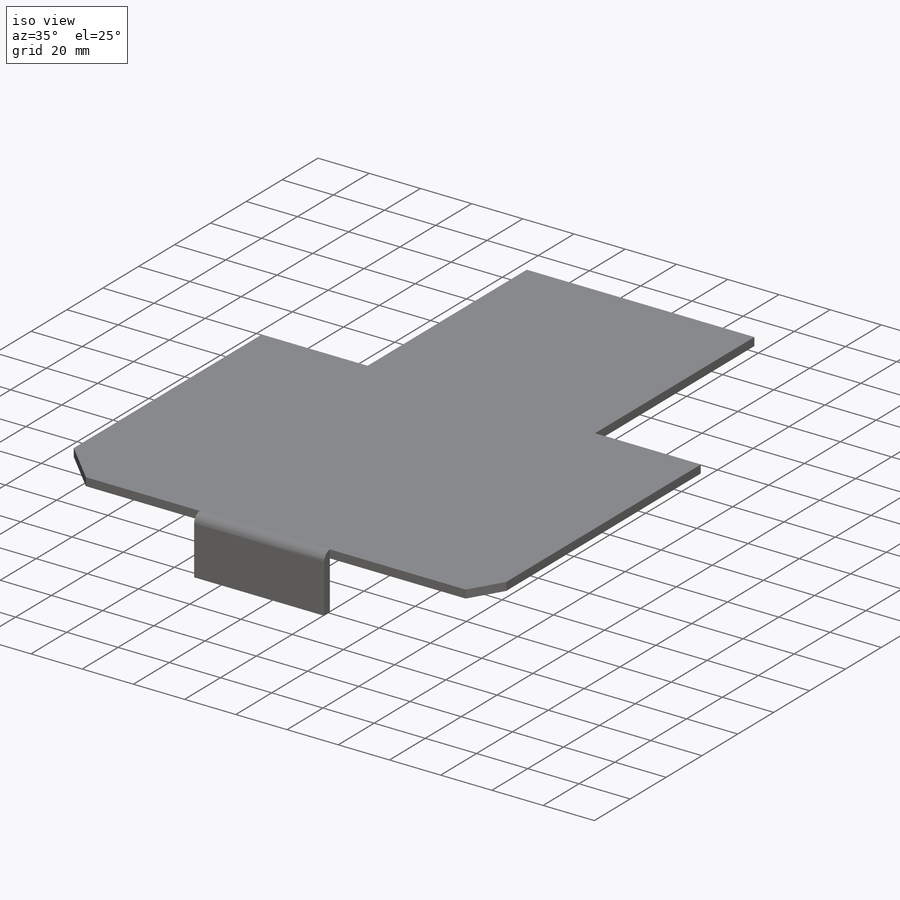
[diagram: iso view]
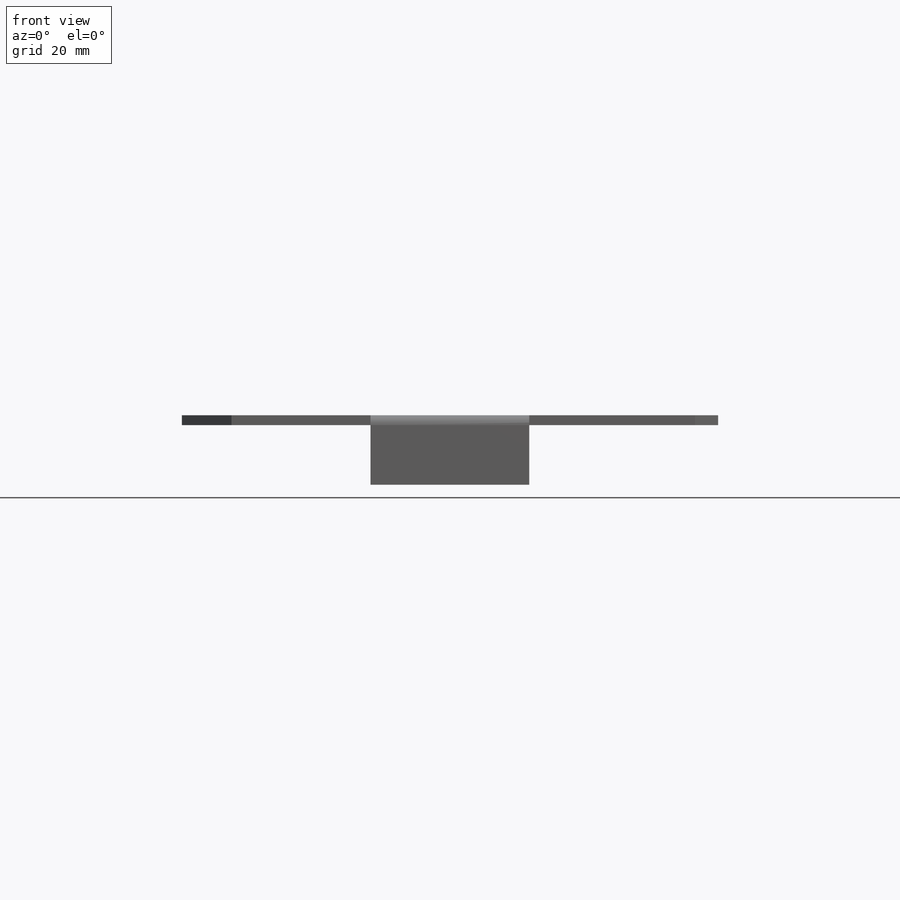
[diagram: front view]
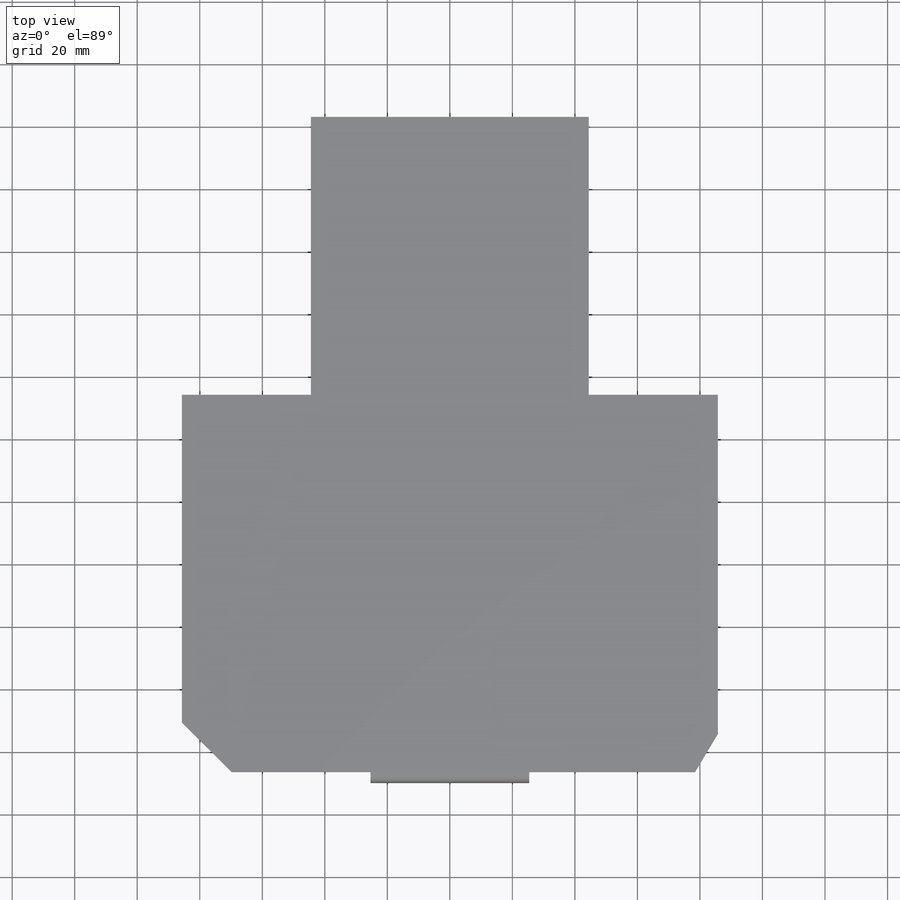
[diagram: top view]
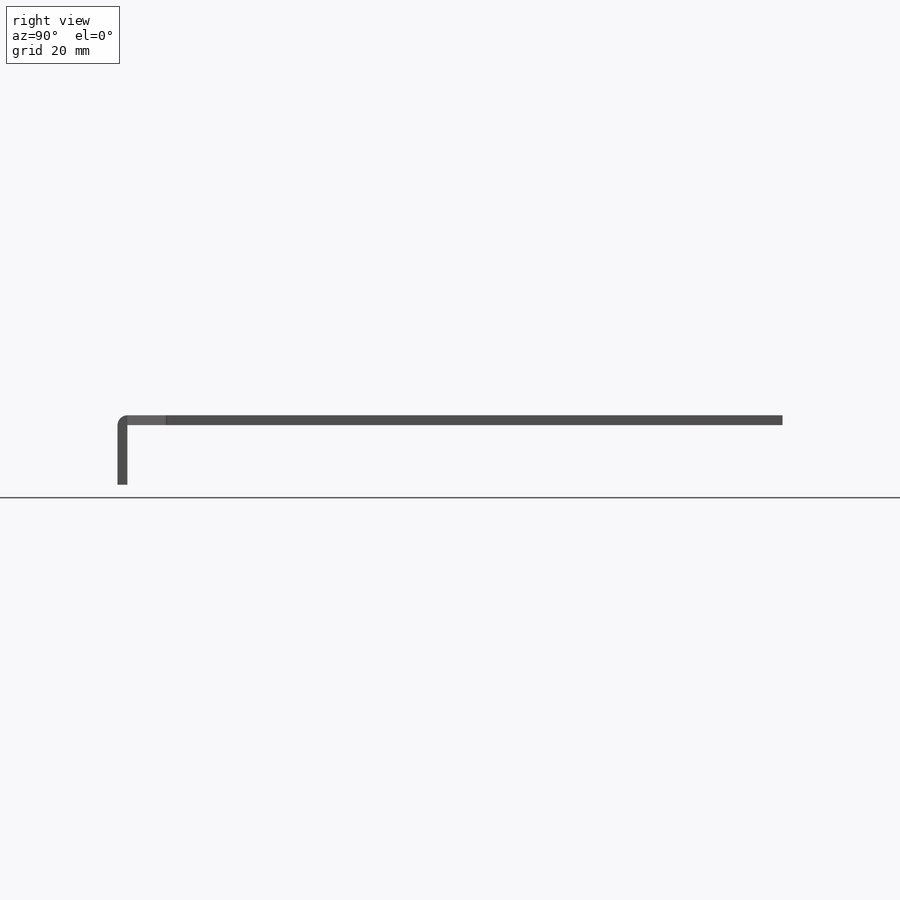
[diagram: right view]
SOLIDWORKS PART (.sldprt)
format: sldprt  version: not decoded by parser v0  size: 203,264 bytes
history: native  units: mm
features: sketch x5, extrude x5, material x1, chamfer x1 (+11 scaffold rows collapsed)
feature tree (23):
  scaffold x11  (default folders/planes/origin — collapsed)
  material  "Material <not specified>"
  sketch  "Sketch1"  dims[D1=107.95mm D2=171.45mm]
  extrude  "Boss-Extrude1"  Depth=3.175mm
  sketch  "Sketch2"  dims[D1=12.7mm]
  extrude  "Boss-Extrude2"  Depth=3.175mm
  sketch  "Sketch4"  dims[c1.D1=50.8mm c1.D2=25.4mm c1.D3=3.175mm c1.D4=3.175mm c2.D1=3.175mm]
  extrude  "Boss-Extrude3"  Depth=19.05mm
  chamfer  "Chamfer1"  Distance=12.7mm Angle=45deg
  sketch  "Sketch6"  dims[c1.D5=304.8mm c1.D1=76.2mm c1.D2=88.9mm c1.D3=44.45mm c1.D4=152.4mm c2.D1=88.9mm]
  extrude  "Boss-Extrude4"  Depth=3.175mm
  sketch  "Sketch10"
  extrude  "Boss-Extrude7"  Depth=50.8mm
decode coverage: 10 of 11 modeling features carry decoded parameters
note: suppression state not decoded; provenance and decode notes live in map.json
